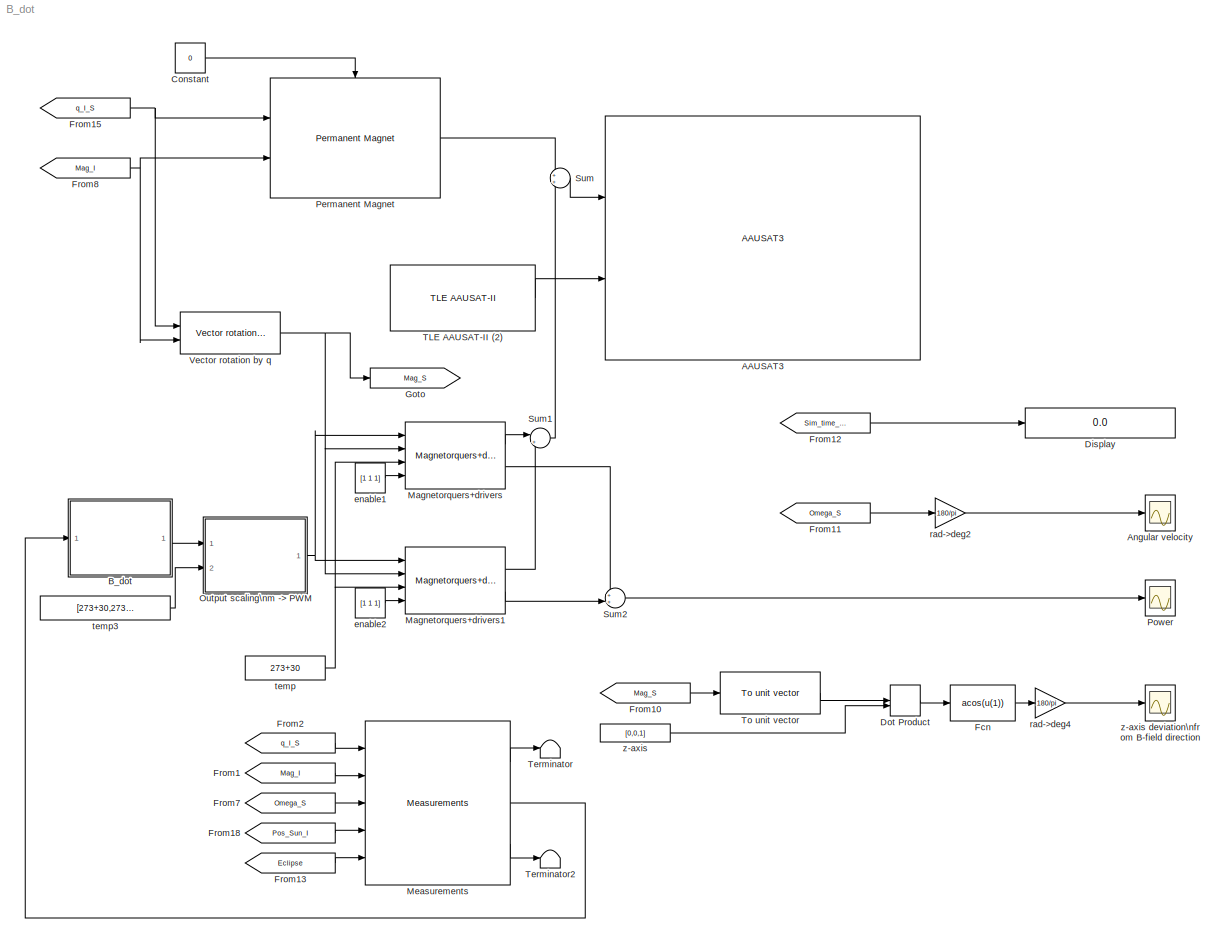
MODEL B_dot
KIND model
BLOCK [Reference] AAUSAT3  REF=aausat3_lib/AAUSAT3  (lib defined in mdl_4157f6465749, slx_d9305f96731e)
  Cd = 2
  Dim = [0.1,0.1,0.11]
  FunctionWithSeparateData = off
  Ports = [2]
  RTWMemSecDataConstants = Inherit from model
  RTWMemSecDataInternal = Inherit from model
  RTWMemSecDataParameters = Inherit from model
  RTWMemSecFuncExecute = Inherit from model
  RTWMemSecFuncInitTerm = Inherit from model
  SID = 1039
  ShowPortLabels = none
  SourceBlock = aausat3_lib/AAUSAT3
  SystemSampleTime = -1
  Ts = 1
  enable_env_disturbance = on
  enable_sensor_emulation = on
  inertia_c = [0.0017464,0.0022092,0.0022388]
  init_jd = 2455153.1954318
  mass_sc = 0.957820
  q_init_I_S = [1 0 0 0]
  q_s_c = [-0.020656,0.71468,-0.007319,0.6991]
  r_com_s = [0.049073,0.048909,0.042976]
  redfac = 1
  refldata = load('lib/AlbedoToolbox-1.0/refl_data/2005/ga050101-051231')
  rho = 5e-14
  sat_temp_start = 293.15
  solar_absorb_coeff = 1.5
  solar_m_flux = 4.5565e-6
  theta_e = 65
  w_init_s = [1,1,1]*10*pi/180
BLOCK [Scope] Angular velocity
  DataFormat = StructureWithTime
  Floating = off
  LimitDataPoints = off
  NumInputPorts = 1
  Ports = [1]
  SID = 933
  SampleInput = on
  SaveName = ScopeData2
  TimeRange = 48000
  YMax = 1
  YMin = -1
  ZoomMode = yonly
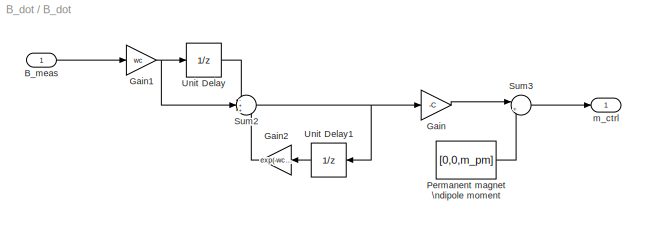
BLOCK [SubSystem] B_dot
  AncestorBlock = aausat3_lib/ACS/B_dot
  FunctionWithSeparateData = off
  MaskCallbackString = |||
  MaskEnableString = on,on,on,on
  MaskHideContents = off
  MaskIconFrame = on
  MaskIconOpaque = on
  MaskIconRotate = none
  MaskIconUnits = autoscale
  MaskPortRotate = default
  MaskPromptString = Gain:|Filter cutoff frequency:|Permanent magnet dipole moment:|Sample time:
  MaskStyleString = edit,edit,edit,edit
  MaskToolTipString = on,on,on,on
  MaskTunableValueString = on,on,on,on
  MaskValueString = 6000|0.7|-0.0030|0.1
  MaskVariables = C=@1;wc=@2;m_pm=@3;Ts=@4;
  MaskVisibilityString = on,on,on,on
  MinAlgLoopOccurrences = off
  Opaque = off
  Ports = [1, 1]
  PropExecContextOutsideSubsystem = off
  RTWSystemCode = Auto
  RequestExecContextInheritance = off
  SID = 1038
BLOCK [Inport] B_dot/B_meas
  IconDisplay = Port number
  OutDataType = sfix(16)
  OutScaling = 2^0
  SID = 4483
BLOCK [Gain] B_dot/Gain
  Gain = -C
  OutDataType = fixdt(1, 16)
  OutDataTypeMode = Inherit via internal rule
  OutDataTypeStr = Inherit: Inherit via internal rule
  OutScaling = 2^0
  ParamDataTypeStr = Inherit: Inherit via internal rule
  ParameterDataType = fixdt(1, 16)
  ParameterDataTypeMode = Inherit via internal rule
  ParameterScaling = 2^0
  SID = 4543
  SaturateOnIntegerOverflow = off
BLOCK [Gain] B_dot/Gain1
  Gain = wc
  OutDataType = fixdt(1, 16)
  OutDataTypeMode = Inherit via internal rule
  OutDataTypeStr = Inherit: Inherit via internal rule
  OutScaling = 2^0
  ParamDataTypeStr = Inherit: Inherit via internal rule
  ParameterDataType = fixdt(1, 16)
  ParameterDataTypeMode = Inherit via internal rule
  ParameterScaling = 2^0
  SID = 4544
  SaturateOnIntegerOverflow = off
BLOCK [Gain] B_dot/Gain2
  Gain = exp(-wc*Ts)
  OutDataType = fixdt(1, 16)
  OutDataTypeMode = Inherit via internal rule
  OutDataTypeStr = Inherit: Inherit via internal rule
  OutScaling = 2^0
  ParamDataTypeStr = Inherit: Inherit via internal rule
  ParameterDataType = fixdt(1, 16)
  ParameterDataTypeMode = Inherit via internal rule
  ParameterScaling = 2^0
  SID = 4545
  SaturateOnIntegerOverflow = off
BLOCK [Constant] B_dot/Permanent magnet \ndipole moment
  OutDataType = fixdt(1, 16)
  OutScaling = 2^0
  SID = 4546
  Value = [0,0,m_pm]
BLOCK [Sum] B_dot/Sum2
  IconShape = round
  InputSameDT = off
  Inputs = -++
  OutDataType = fixdt(1, 16)
  OutDataTypeMode = Inherit via internal rule
  OutDataTypeStr = Inherit: Inherit via internal rule
  OutScaling = 2^0
  Ports = [3, 1]
  SID = 4547
  SaturateOnIntegerOverflow = off
BLOCK [Sum] B_dot/Sum3
  IconShape = round
  InputSameDT = off
  Inputs = |++
  OutDataType = fixdt(1, 16)
  OutDataTypeMode = Inherit via internal rule
  OutDataTypeStr = Inherit: Inherit via internal rule
  OutScaling = 2^0
  Ports = [2, 1]
  SID = 4548
  SaturateOnIntegerOverflow = off
BLOCK [UnitDelay] B_dot/Unit Delay
  SID = 4549
  SampleTime = -1
BLOCK [UnitDelay] B_dot/Unit Delay1
  SID = 4550
  SampleTime = -1
BLOCK [Outport] B_dot/m_ctrl
  IconDisplay = Port number
  OutDataType = sfix(16)
  OutScaling = 2^0
  PortDimensions = 3
  SID = 4542
BLOCK [Constant] Constant
  OutDataType = fixdt(1, 16)
  OutScaling = 2^0
  SID = 116
  Value = 0
BLOCK [Display] Display
  Decimation = 1
  Format = long
  Lockdown = off
  Ports = [1]
  SID = 390
BLOCK [DotProduct] Dot Product
  OutDataType = fixdt(1, 16)
  OutDataTypeStr = Inherit: Inherit via internal rule
  OutScaling = 2^-10
  OutputDataTypeScalingMode = Inherit via internal rule
  SID = 1023
BLOCK [Fcn] Fcn
  Expr = acos(u(1))
  SID = 1022
BLOCK [From] From1
  CloseFcn = tagdialog Close
  GotoTag = Mag_I
  SID = 120
  TagVisibility = global
BLOCK [From] From10
  CloseFcn = tagdialog Close
  GotoTag = Mag_S
  SID = 1025
  TagVisibility = global
BLOCK [From] From11
  CloseFcn = tagdialog Close
  GotoTag = Omega_S
  SID = 931
  TagVisibility = global
BLOCK [From] From12
  CloseFcn = tagdialog Close
  GotoTag = Sim_time_JD
  SID = 389
  TagVisibility = global
BLOCK [From] From13
  CloseFcn = tagdialog Close
  GotoTag = Eclipse
  SID = 399
  TagVisibility = global
BLOCK [From] From15
  CloseFcn = tagdialog Close
  GotoTag = q_I_S
  SID = 115
  TagVisibility = global
BLOCK [From] From18
  CloseFcn = tagdialog Close
  GotoTag = Pos_Sun_I
  SID = 121
  TagVisibility = global
BLOCK [From] From2
  CloseFcn = tagdialog Close
  GotoTag = q_I_S
  SID = 123
  TagVisibility = global
BLOCK [From] From7
  CloseFcn = tagdialog Close
  GotoTag = Omega_S
  SID = 122
  TagVisibility = global
BLOCK [From] From8
  CloseFcn = tagdialog Close
  GotoTag = Mag_I
  SID = 114
  TagVisibility = global
BLOCK [Goto] Goto
  GotoTag = Mag_S
  SID = 983
  TagVisibility = global
BLOCK [Reference] Magnetorquers+drivers  REF=aausat3_lib/Actuator Emulation/Magnetorquers+drivers  (lib defined in mdl_4157f6465749, slx_d9305f96731e)
  A_wire_mt = (pi/4)*(0.13e-3)^2
  FunctionWithSeparateData = off
  Ports = [4, 2]
  RTWMemSecDataConstants = Inherit from model
  RTWMemSecDataInternal = Inherit from model
  RTWMemSecDataParameters = Inherit from model
  RTWMemSecFuncExecute = Inherit from model
  RTWMemSecFuncInitTerm = Inherit from model
  SID = 972
  ShowPortLabels = FromPortIcon
  SourceBlock = aausat3_lib/Actuator Emulation/Magnetorquers+drivers
  SystemSampleTime = -1
  T_0_mt = 293.15
  alpha_0_mt = 3.9e-3
  coil_dim = [0.075,0.075]
  duty_mag = 88
  freq_mag = 10
  n_mt = 250
  sigma_0_mt = 1.7e-8
BLOCK [Reference] Magnetorquers+drivers1  REF=aausat3_lib/Actuator Emulation/Magnetorquers+drivers  (lib defined in mdl_4157f6465749, slx_d9305f96731e)
  A_wire_mt = (pi/4)*(0.13e-3)^2
  FunctionWithSeparateData = off
  Ports = [4, 2]
  RTWMemSecDataConstants = Inherit from model
  RTWMemSecDataInternal = Inherit from model
  RTWMemSecDataParameters = Inherit from model
  RTWMemSecFuncExecute = Inherit from model
  RTWMemSecFuncInitTerm = Inherit from model
  SID = 973
  ShowPortLabels = FromPortIcon
  SourceBlock = aausat3_lib/Actuator Emulation/Magnetorquers+drivers
  SystemSampleTime = -1
  T_0_mt = 293.15
  alpha_0_mt = 3.9e-3
  coil_dim = [0.075,0.075]
  duty_mag = 88
  freq_mag = 10
  n_mt = 250
  sigma_0_mt = 1.7e-8
BLOCK [Reference] Measurements  REF=aausat3_lib/Sensor Emulation/Measurements  (lib defined in mdl_4157f6465749, slx_d9305f96731e)
  FunctionWithSeparateData = off
  Ports = [5, 3]
  RTWMemSecDataConstants = Inherit from model
  RTWMemSecDataInternal = Inherit from model
  RTWMemSecDataParameters = Inherit from model
  RTWMemSecFuncExecute = Inherit from model
  RTWMemSecFuncInitTerm = Inherit from model
  SID = 876
  ShowPortLabels = FromPortIcon
  SourceBlock = aausat3_lib/Sensor Emulation/Measurements
  SystemSampleTime = -1
  bias_gyro = [0 0 0]
  bias_mag = [0 0 0]
  bias_sun = [0 0]
  heading_gyro = 0
  heading_mag = 0
  noise_gyro = 0.2
  noise_mag = 3
  noise_sun = 3.33
  nr_sample_sun = 1
  s_freq_gyro = 1
  s_freq_mag = 10
  s_freq_sun = 1
  tilt_gyro = 0
  tilt_mag = 0
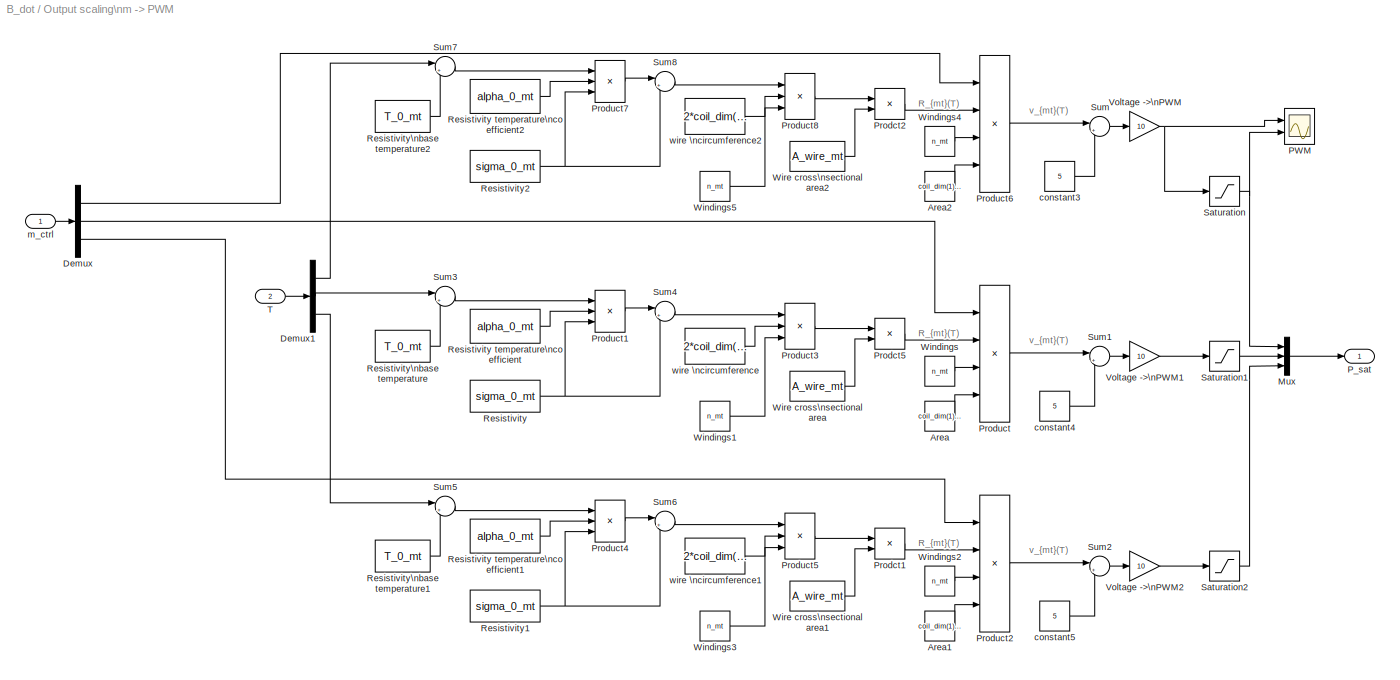
BLOCK [SubSystem] Output scaling\nm -> PWM
  AncestorBlock = aausat3_lib/Actuator Emulation/Output scaling\nm -> PWM
  FunctionWithSeparateData = off
  MaskCallbackString = |||||||
  MaskEnableString = on,on,on,on,on,on,on,on
  MaskHideContents = off
  MaskIconFrame = on
  MaskIconOpaque = on
  MaskIconRotate = none
  MaskIconUnits = autoscale
  MaskPortRotate = default
  MaskPromptString = Coil Dimensions [x,y][m]:|Coil Winding Number [-]:|Wire Cross Sectional Area [m^2]:|Wire Resistivity [Ohm*m]:|Wire Resistivity Temperature Coefficient [(deg C)^-1]:|Wire Resistivity Base Temperature [K]:|PWM max [%]|PWM min [%]
  MaskStyleString = edit,edit,edit,edit,edit,edit,edit,edit
  MaskToolTipString = on,on,on,on,on,on,on,on
  MaskTunableValueString = on,on,on,on,on,on,on,on
  MaskValueString = [0.075,0.075]|250|(pi/4)*(0.13e-3)^2|1.7e-8|3.9e-3|293.15|62.5|37.5
  MaskVariables = coil_dim=@1;n_mt=@2;A_wire_mt=@3;sigma_0_mt=@4;alpha_0_mt=@5;T_0_mt=@6;PWM_max=@7;PWM_min=@8;
  MaskVisibilityString = on,on,on,on,on,on,on,on
  MinAlgLoopOccurrences = off
  Opaque = off
  Ports = [2, 1]
  PropExecContextOutsideSubsystem = off
  RTWSystemCode = Auto
  RequestExecContextInheritance = off
  SID = 961
BLOCK [Constant] Output scaling\nm -> PWM/Area
  OutDataType = sfix(16)
  OutScaling = 2^0
  SID = 4447
  Value = coil_dim(1)*coil_dim(2)
BLOCK [Constant] Output scaling\nm -> PWM/Area1
  OutDataType = sfix(16)
  OutScaling = 2^0
  SID = 4449
  Value = coil_dim(1)*coil_dim(2)
BLOCK [Constant] Output scaling\nm -> PWM/Area2
  OutDataType = sfix(16)
  OutScaling = 2^0
  SID = 4463
  Value = coil_dim(1)*coil_dim(2)
BLOCK [Demux] Output scaling\nm -> PWM/Demux
  DisplayOption = bar
  Outputs = 3
  Ports = [1, 3]
  SID = 4386
BLOCK [Demux] Output scaling\nm -> PWM/Demux1
  DisplayOption = bar
  Outputs = 3
  Ports = [1, 3]
  SID = 4446
BLOCK [Mux] Output scaling\nm -> PWM/Mux
  DisplayOption = bar
  Inputs = 3
  Ports = [3, 1]
  SID = 4388
BLOCK [Scope] Output scaling\nm -> PWM/PWM
  DataFormat = StructureWithTime
  Floating = off
  LimitDataPoints = off
  NumInputPorts = 2
  Ports = [2]
  SID = 4552
  SampleInput = on
  SaveName = ScopeData4
  TimeRange = 5000
  YMax = 67.5~62.5
  YMin = 37.5~37.5
BLOCK [Outport] Output scaling\nm -> PWM/P_sat
  IconDisplay = Port number
  OutDataType = sfix(16)
  OutScaling = 2^0
  PortDimensions = 3
  SID = 4417
BLOCK [Product] Output scaling\nm -> PWM/Prodct1
  InputSameDT = off
  Inputs = */
  OutDataType = sfix(16)
  OutDataTypeMode = Inherit via internal rule
  OutDataTypeStr = Inherit: Inherit via internal rule
  OutScaling = 2^0
  Ports = [2, 1]
  SID = 4450
  SaturateOnIntegerOverflow = off
BLOCK [Product] Output scaling\nm -> PWM/Prodct2
  InputSameDT = off
  Inputs = */
  OutDataType = sfix(16)
  OutDataTypeMode = Inherit via internal rule
  OutDataTypeStr = Inherit: Inherit via internal rule
  OutScaling = 2^0
  Ports = [2, 1]
  SID = 4464
  SaturateOnIntegerOverflow = off
BLOCK [Product] Output scaling\nm -> PWM/Prodct5
  InputSameDT = off
  Inputs = */
  OutDataType = sfix(16)
  OutDataTypeMode = Inherit via internal rule
  OutDataTypeStr = Inherit: Inherit via internal rule
  OutScaling = 2^0
  Ports = [2, 1]
  SID = 4428
  SaturateOnIntegerOverflow = off
BLOCK [Product] Output scaling\nm -> PWM/Product
  InputSameDT = off
  Inputs = **//
  OutDataType = sfix(16)
  OutDataTypeMode = Inherit via internal rule
  OutDataTypeStr = Inherit: Inherit via internal rule
  OutScaling = 2^0
  Ports = [4, 1]
  SID = 4429
  SaturateOnIntegerOverflow = off
BLOCK [Product] Output scaling\nm -> PWM/Product1
  InputSameDT = off
  Inputs = 3
  OutDataType = sfix(16)
  OutDataTypeMode = Inherit via internal rule
  OutDataTypeStr = Inherit: Inherit via internal rule
  OutScaling = 2^0
  Ports = [3, 1]
  SID = 4430
  SaturateOnIntegerOverflow = off
BLOCK [Product] Output scaling\nm -> PWM/Product2
  InputSameDT = off
  Inputs = **//
  OutDataType = sfix(16)
  OutDataTypeMode = Inherit via internal rule
  OutDataTypeStr = Inherit: Inherit via internal rule
  OutScaling = 2^0
  Ports = [4, 1]
  SID = 4451
  SaturateOnIntegerOverflow = off
BLOCK [Product] Output scaling\nm -> PWM/Product3
  InputSameDT = off
  Inputs = 3
  OutDataType = sfix(16)
  OutDataTypeMode = Inherit via internal rule
  OutDataTypeStr = Inherit: Inherit via internal rule
  OutScaling = 2^0
  Ports = [3, 1]
  SID = 4432
  SaturateOnIntegerOverflow = off
BLOCK [Product] Output scaling\nm -> PWM/Product4
  InputSameDT = off
  Inputs = 3
  OutDataType = sfix(16)
  OutDataTypeMode = Inherit via internal rule
  OutDataTypeStr = Inherit: Inherit via internal rule
  OutScaling = 2^0
  Ports = [3, 1]
  SID = 4452
  SaturateOnIntegerOverflow = off
BLOCK [Product] Output scaling\nm -> PWM/Product5
  InputSameDT = off
  Inputs = 3
  OutDataType = sfix(16)
  OutDataTypeMode = Inherit via internal rule
  OutDataTypeStr = Inherit: Inherit via internal rule
  OutScaling = 2^0
  Ports = [3, 1]
  SID = 4453
  SaturateOnIntegerOverflow = off
BLOCK [Product] Output scaling\nm -> PWM/Product6
  InputSameDT = off
  Inputs = **//
  OutDataType = sfix(16)
  OutDataTypeMode = Inherit via internal rule
  OutDataTypeStr = Inherit: Inherit via internal rule
  OutScaling = 2^0
  Ports = [4, 1]
  SID = 4465
  SaturateOnIntegerOverflow = off
BLOCK [Product] Output scaling\nm -> PWM/Product7
  InputSameDT = off
  Inputs = 3
  OutDataType = sfix(16)
  OutDataTypeMode = Inherit via internal rule
  OutDataTypeStr = Inherit: Inherit via internal rule
  OutScaling = 2^0
  Ports = [3, 1]
  SID = 4466
  SaturateOnIntegerOverflow = off
BLOCK [Product] Output scaling\nm -> PWM/Product8
  InputSameDT = off
  Inputs = 3
  OutDataType = sfix(16)
  OutDataTypeMode = Inherit via internal rule
  OutDataTypeStr = Inherit: Inherit via internal rule
  OutScaling = 2^0
  Ports = [3, 1]
  SID = 4467
  SaturateOnIntegerOverflow = off
BLOCK [Constant] Output scaling\nm -> PWM/Resistivity
  OutDataType = sfix(16)
  OutScaling = 2^0
  SID = 4434
  Value = sigma_0_mt
BLOCK [Constant] Output scaling\nm -> PWM/Resistivity temperature\ncoefficient
  OutDataType = sfix(16)
  OutScaling = 2^0
  SID = 4436
  Value = alpha_0_mt
BLOCK [Constant] Output scaling\nm -> PWM/Resistivity temperature\ncoefficient1
  OutDataType = sfix(16)
  OutScaling = 2^0
  SID = 4456
  Value = alpha_0_mt
BLOCK [Constant] Output scaling\nm -> PWM/Resistivity temperature\ncoefficient2
  OutDataType = sfix(16)
  OutScaling = 2^0
  SID = 4470
  Value = alpha_0_mt
BLOCK [Constant] Output scaling\nm -> PWM/Resistivity1
  OutDataType = sfix(16)
  OutScaling = 2^0
  SID = 4454
  Value = sigma_0_mt
BLOCK [Constant] Output scaling\nm -> PWM/Resistivity2
  OutDataType = sfix(16)
  OutScaling = 2^0
  SID = 4468
  Value = sigma_0_mt
BLOCK [Constant] Output scaling\nm -> PWM/Resistivity\nbase temperature
  OutDataType = sfix(16)
  OutScaling = 2^0
  SID = 4435
  Value = T_0_mt
BLOCK [Constant] Output scaling\nm -> PWM/Resistivity\nbase temperature1
  OutDataType = sfix(16)
  OutScaling = 2^0
  SID = 4455
  Value = T_0_mt
BLOCK [Constant] Output scaling\nm -> PWM/Resistivity\nbase temperature2
  OutDataType = sfix(16)
  OutScaling = 2^0
  SID = 4469
  Value = T_0_mt
BLOCK [Saturate] Output scaling\nm -> PWM/Saturation
  LowerLimit = PWM_min
  SID = 4418
  UpperLimit = PWM_max
BLOCK [Saturate] Output scaling\nm -> PWM/Saturation1
  LowerLimit = PWM_min
  SID = 4419
  UpperLimit = PWM_max
BLOCK [Saturate] Output scaling\nm -> PWM/Saturation2
  LowerLimit = PWM_min
  SID = 4420
  UpperLimit = PWM_max
BLOCK [Sum] Output scaling\nm -> PWM/Sum
  IconShape = round
  InputSameDT = off
  Inputs = |++
  OutDataType = fixdt(1, 16)
  OutDataTypeMode = Inherit via internal rule
  OutDataTypeStr = Inherit: Inherit via internal rule
  OutScaling = 2^0
  Ports = [2, 1]
  SID = 4398
  SaturateOnIntegerOverflow = off
BLOCK [Sum] Output scaling\nm -> PWM/Sum1
  IconShape = round
  InputSameDT = off
  Inputs = |++
  OutDataType = fixdt(1, 16)
  OutDataTypeMode = Inherit via internal rule
  OutDataTypeStr = Inherit: Inherit via internal rule
  OutScaling = 2^0
  Ports = [2, 1]
  SID = 4399
  SaturateOnIntegerOverflow = off
BLOCK [Sum] Output scaling\nm -> PWM/Sum2
  IconShape = round
  InputSameDT = off
  Inputs = |++
  OutDataType = fixdt(1, 16)
  OutDataTypeMode = Inherit via internal rule
  OutDataTypeStr = Inherit: Inherit via internal rule
  OutScaling = 2^0
  Ports = [2, 1]
  SID = 4400
  SaturateOnIntegerOverflow = off
BLOCK [Sum] Output scaling\nm -> PWM/Sum3
  IconShape = round
  InputSameDT = off
  Inputs = |+-
  OutDataType = sfix(16)
  OutDataTypeMode = Inherit via internal rule
  OutDataTypeStr = Inherit: Inherit via internal rule
  OutScaling = 2^0
  Ports = [2, 1]
  SID = 4437
  SaturateOnIntegerOverflow = off
BLOCK [Sum] Output scaling\nm -> PWM/Sum4
  IconShape = round
  InputSameDT = off
  Inputs = |++
  OutDataType = sfix(16)
  OutDataTypeMode = Inherit via internal rule
  OutDataTypeStr = Inherit: Inherit via internal rule
  OutScaling = 2^0
  Ports = [2, 1]
  SID = 4438
  SaturateOnIntegerOverflow = off
BLOCK [Sum] Output scaling\nm -> PWM/Sum5
  IconShape = round
  InputSameDT = off
  Inputs = |+-
  OutDataType = sfix(16)
  OutDataTypeMode = Inherit via internal rule
  OutDataTypeStr = Inherit: Inherit via internal rule
  OutScaling = 2^0
  Ports = [2, 1]
  SID = 4457
  SaturateOnIntegerOverflow = off
BLOCK [Sum] Output scaling\nm -> PWM/Sum6
  IconShape = round
  InputSameDT = off
  Inputs = |++
  OutDataType = sfix(16)
  OutDataTypeMode = Inherit via internal rule
  OutDataTypeStr = Inherit: Inherit via internal rule
  OutScaling = 2^0
  Ports = [2, 1]
  SID = 4458
  SaturateOnIntegerOverflow = off
BLOCK [Sum] Output scaling\nm -> PWM/Sum7
  IconShape = round
  InputSameDT = off
  Inputs = |+-
  OutDataType = sfix(16)
  OutDataTypeMode = Inherit via internal rule
  OutDataTypeStr = Inherit: Inherit via internal rule
  OutScaling = 2^0
  Ports = [2, 1]
  SID = 4471
  SaturateOnIntegerOverflow = off
BLOCK [Sum] Output scaling\nm -> PWM/Sum8
  IconShape = round
  InputSameDT = off
  Inputs = |++
  OutDataType = sfix(16)
  OutDataTypeMode = Inherit via internal rule
  OutDataTypeStr = Inherit: Inherit via internal rule
  OutScaling = 2^0
  Ports = [2, 1]
  SID = 4472
  SaturateOnIntegerOverflow = off
BLOCK [Inport] Output scaling\nm -> PWM/T
  IconDisplay = Port number
  OutDataType = sfix(16)
  OutScaling = 2^0
  Port = 2
  SID = 4424
BLOCK [Gain] Output scaling\nm -> PWM/Voltage ->\nPWM
  Gain = 10
  OutDataType = fixdt(1, 16)
  OutDataTypeMode = Inherit via internal rule
  OutDataTypeStr = Inherit: Inherit via internal rule
  OutScaling = 2^0
  ParamDataTypeStr = Inherit: Inherit via internal rule
  ParameterDataType = fixdt(1, 16)
  ParameterDataTypeMode = Inherit via internal rule
  ParameterScaling = 2^0
  SID = 4477
  SaturateOnIntegerOverflow = off
BLOCK [Gain] Output scaling\nm -> PWM/Voltage ->\nPWM1
  Gain = 10
  OutDataType = fixdt(1, 16)
  OutDataTypeMode = Inherit via internal rule
  OutDataTypeStr = Inherit: Inherit via internal rule
  OutScaling = 2^0
  ParamDataTypeStr = Inherit: Inherit via internal rule
  ParameterDataType = fixdt(1, 16)
  ParameterDataTypeMode = Inherit via internal rule
  ParameterScaling = 2^0
  SID = 4480
  SaturateOnIntegerOverflow = off
BLOCK [Gain] Output scaling\nm -> PWM/Voltage ->\nPWM2
  Gain = 10
  OutDataType = fixdt(1, 16)
  OutDataTypeMode = Inherit via internal rule
  OutDataTypeStr = Inherit: Inherit via internal rule
  OutScaling = 2^0
  ParamDataTypeStr = Inherit: Inherit via internal rule
  ParameterDataType = fixdt(1, 16)
  ParameterDataTypeMode = Inherit via internal rule
  ParameterScaling = 2^0
  SID = 4481
  SaturateOnIntegerOverflow = off
BLOCK [Constant] Output scaling\nm -> PWM/Windings
  OutDataType = sfix(16)
  OutScaling = 2^0
  SID = 4448
  Value = n_mt
BLOCK [Constant] Output scaling\nm -> PWM/Windings1
  OutDataType = sfix(16)
  OutScaling = 2^0
  SID = 4440
  Value = n_mt
BLOCK [Constant] Output scaling\nm -> PWM/Windings2
  OutDataType = sfix(16)
  OutScaling = 2^0
  SID = 4459
  Value = n_mt
BLOCK [Constant] Output scaling\nm -> PWM/Windings3
  OutDataType = sfix(16)
  OutScaling = 2^0
  SID = 4460
  Value = n_mt
BLOCK [Constant] Output scaling\nm -> PWM/Windings4
  OutDataType = sfix(16)
  OutScaling = 2^0
  SID = 4473
  Value = n_mt
BLOCK [Constant] Output scaling\nm -> PWM/Windings5
  OutDataType = sfix(16)
  OutScaling = 2^0
  SID = 4474
  Value = n_mt
BLOCK [Constant] Output scaling\nm -> PWM/Wire cross\nsectional area
  OutDataType = sfix(16)
  OutScaling = 2^0
  SID = 4441
  Value = A_wire_mt
BLOCK [Constant] Output scaling\nm -> PWM/Wire cross\nsectional area1
  OutDataType = sfix(16)
  OutScaling = 2^0
  SID = 4461
  Value = A_wire_mt
BLOCK [Constant] Output scaling\nm -> PWM/Wire cross\nsectional area2
  OutDataType = sfix(16)
  OutScaling = 2^0
  SID = 4475
  Value = A_wire_mt
BLOCK [Constant] Output scaling\nm -> PWM/constant3
  OutDataType = sfix(16)
  OutScaling = 2^0
  SID = 4413
  Value = 5
BLOCK [Constant] Output scaling\nm -> PWM/constant4
  OutDataType = sfix(16)
  OutScaling = 2^0
  SID = 4414
  Value = 5
BLOCK [Constant] Output scaling\nm -> PWM/constant5
  OutDataType = sfix(16)
  OutScaling = 2^0
  SID = 4415
  Value = 5
BLOCK [Inport] Output scaling\nm -> PWM/m_ctrl
  IconDisplay = Port number
  OutDataType = sfix(16)
  OutScaling = 2^0
  SID = 4381
BLOCK [Constant] Output scaling\nm -> PWM/wire \ncircumference
  OutDataType = sfix(16)
  OutScaling = 2^0
  SID = 4442
  Value = 2*coil_dim(1)+2*coil_dim(2)
BLOCK [Constant] Output scaling\nm -> PWM/wire \ncircumference1
  OutDataType = sfix(16)
  OutScaling = 2^0
  SID = 4462
  Value = 2*coil_dim(1)+2*coil_dim(2)
BLOCK [Constant] Output scaling\nm -> PWM/wire \ncircumference2
  OutDataType = sfix(16)
  OutScaling = 2^0
  SID = 4476
  Value = 2*coil_dim(1)+2*coil_dim(2)
BLOCK [Reference] Permanent Magnet  REF=aausat3_lib/Actuator Emulation/Permanent Magnet  (lib defined in mdl_4157f6465749, slx_d9305f96731e)
  FunctionWithSeparateData = off
  Ports = [2, 1, 1]
  RTWMemSecDataConstants = Inherit from model
  RTWMemSecDataInternal = Inherit from model
  RTWMemSecDataParameters = Inherit from model
  RTWMemSecFuncExecute = Inherit from model
  RTWMemSecFuncInitTerm = Inherit from model
  SID = 109
  ShowPortLabels = FromPortIcon
  SourceBlock = aausat3_lib/Actuator Emulation/Permanent Magnet
  SystemSampleTime = -1
  mag_moment = -0.0030
BLOCK [Scope] Power
  DataFormat = StructureWithTime
  Floating = off
  LimitDataPoints = off
  NumInputPorts = 1
  Ports = [1]
  SID = 969
  SampleInput = on
  SaveName = ScopeData3
  TimeRange = 48000
  YMax = 0.035
  YMin = 0
  ZoomMode = xonly
BLOCK [Sum] Sum
  IconShape = round
  InputSameDT = off
  OutDataType = fixdt(1, 16)
  OutDataTypeMode = Inherit via internal rule
  OutDataTypeStr = Inherit: Inherit via internal rule
  OutScaling = 2^0
  Ports = [2, 1]
  SID = 881
  SaturateOnIntegerOverflow = off
BLOCK [Sum] Sum1
  IconShape = round
  InputSameDT = off
  Inputs = |++
  OutDataType = fixdt(1, 16)
  OutDataTypeMode = Inherit via internal rule
  OutDataTypeStr = Inherit: Inherit via internal rule
  OutScaling = 2^0
  Ports = [2, 1]
  SID = 936
  SaturateOnIntegerOverflow = off
BLOCK [Sum] Sum2
  IconShape = round
  InputSameDT = off
  Inputs = ++|
  OutDataType = fixdt(1, 16)
  OutDataTypeMode = Inherit via internal rule
  OutDataTypeStr = Inherit: Inherit via internal rule
  OutScaling = 2^0
  Ports = [2, 1]
  SID = 970
  SaturateOnIntegerOverflow = off
BLOCK [Reference] TLE AAUSAT-II (2)  REF=aausat3_lib/Orbit and Ephemeris/TLE AAUSAT-II  (lib defined in mdl_4157f6465749, slx_d9305f96731e)
  FunctionWithSeparateData = off
  JulianDay = 09321.69542252
  Ports = [0, 1]
  RTWMemSecDataConstants = Inherit from model
  RTWMemSecDataInternal = Inherit from model
  RTWMemSecDataParameters = Inherit from model
  RTWMemSecFuncExecute = Inherit from model
  RTWMemSecFuncInitTerm = Inherit from model
  SID = 110
  ShowPortLabels = FromPortIcon
  SourceBlock = aausat3_lib/Orbit and Ephemeris/TLE AAUSAT-II
  SystemSampleTime = -1
  bstar = .76898e-4
  eo = 0.0014245
  omegao = 254.1774
  satname = 'AAUSAT-II'
  ts = 1
  xincl = 97.9251
  xmo = 105.7862
  xndd6o = 0.0
  xndt2o = 0.00000555
  xno = 14.81823818
  xnodeo = 24.1597
BLOCK [Terminator] Terminator
  SID = 887
BLOCK [Terminator] Terminator2
  SID = 889
BLOCK [Reference] To unit vector  REF=aausat3_lib/Math Utilities/Vector operations/To unit vector  (lib defined in mdl_4157f6465749, slx_d9305f96731e)
  FunctionWithSeparateData = off
  Ports = [1, 1]
  RTWMemSecDataConstants = Inherit from model
  RTWMemSecDataInternal = Inherit from model
  RTWMemSecDataParameters = Inherit from model
  RTWMemSecFuncExecute = Inherit from model
  RTWMemSecFuncInitTerm = Inherit from model
  SID = 1028
  ShowPortLabels = FromPortIcon
  SourceBlock = aausat3_lib/Math Utilities/Vector operations/To unit vector
  SourceType = SubSystem
  SystemSampleTime = -1
BLOCK [Reference] Vector rotation by q  REF=aausat3_lib/Actuator Emulation/Permanent Magnet/Vector rotation by q  (lib defined in mdl_4157f6465749, slx_d9305f96731e)
  FunctionWithSeparateData = off
  Ports = [2, 1]
  RTWMemSecDataConstants = Inherit from model
  RTWMemSecDataInternal = Inherit from model
  RTWMemSecDataParameters = Inherit from model
  RTWMemSecFuncExecute = Inherit from model
  RTWMemSecFuncInitTerm = Inherit from model
  SID = 882
  ShowPortLabels = FromPortIcon
  SourceBlock = aausat3_lib/Actuator Emulation/Permanent Magnet/Vector rotation by q
  SourceType = SubSystem
  SystemSampleTime = -1
BLOCK [Constant] enable1
  OutDataType = fixdt(1, 16)
  OutScaling = 2^0
  SID = 925
  Value = [1 1 1]
BLOCK [Constant] enable2
  OutDataType = fixdt(1, 16)
  OutScaling = 2^0
  SID = 937
  Value = [1 1 1]
  VectorParams1D = off
BLOCK [Gain] rad->deg2
  Gain = 180/pi
  OutDataType = fixdt(1, 16)
  OutDataTypeMode = Inherit via internal rule
  OutDataTypeStr = Inherit: Inherit via internal rule
  OutScaling = 2^0
  ParamDataTypeStr = Inherit: Inherit via internal rule
  ParameterDataType = fixdt(1, 16)
  ParameterDataTypeMode = Inherit via internal rule
  ParameterScaling = 2^0
  SID = 932
  SaturateOnIntegerOverflow = off
BLOCK [Gain] rad->deg4
  Gain = 180/pi
  OutDataType = fixdt(1, 16)
  OutDataTypeMode = Inherit via internal rule
  OutDataTypeStr = Inherit: Inherit via internal rule
  OutScaling = 2^0
  ParamDataTypeStr = Inherit: Inherit via internal rule
  ParameterDataType = fixdt(1, 16)
  ParameterDataTypeMode = Inherit via internal rule
  ParameterScaling = 2^0
  SID = 1027
  SaturateOnIntegerOverflow = off
BLOCK [Constant] temp
  OutDataType = fixdt(1, 16)
  OutScaling = 2^0
  SID = 927
  Value = 273+30
BLOCK [Constant] temp3
  OutDataType = fixdt(1, 16)
  OutScaling = 2^0
  SID = 968
  Value = [273+30,273+30,273+30]
BLOCK [Constant] z-axis
  OutDataType = fixdt(1, 16)
  OutScaling = 2^0
  SID = 1020
  Value = [0,0,1]
BLOCK [Scope] z-axis deviation\nfrom B-field direction
  DataFormat = StructureWithTime
  Floating = off
  LimitDataPoints = off
  NumInputPorts = 1
  Ports = [1]
  SID = 1026
  SampleInput = on
  SampleTime = 1
  SaveName = ScopeData9
  TimeRange = 48000
  YMax = 180
  YMin = 0
ANNOTATION Output scaling\nm -> PWM: R_{mt}(T)
ANNOTATION Output scaling\nm -> PWM: v_{mt}(T)
LINE B_dot/B_meas:1 -> B_dot/Gain1:1
NET B_dot/Gain1:1 -> B_dot/Sum2:2, B_dot/Unit Delay:1
LINE B_dot/Gain2:1 -> B_dot/Sum2:3
LINE B_dot/Gain:1 -> B_dot/Sum3:1
LINE B_dot/Permanent magnet \ndipole moment:1 -> B_dot/Sum3:2
NET B_dot/Sum2:1 -> B_dot/Gain:1, B_dot/Unit Delay1:1
LINE B_dot/Sum3:1 -> B_dot/m_ctrl:1
LINE B_dot/Unit Delay1:1 -> B_dot/Gain2:1
LINE B_dot/Unit Delay:1 -> B_dot/Sum2:1
LINE B_dot:1 -> Output scaling\nm -> PWM:1
LINE Constant:1 -> Permanent Magnet:enable
LINE Dot Product:1 -> Fcn:1
LINE Fcn:1 -> rad->deg4:1
LINE From10:1 -> To unit vector:1
LINE From11:1 -> rad->deg2:1
LINE From12:1 -> Display:1
LINE From13:1 -> Measurements:5
NET From15:1 -> Permanent Magnet:1, Vector rotation by q:1
LINE From18:1 -> Measurements:4
LINE From1:1 -> Measurements:2
LINE From2:1 -> Measurements:1
LINE From7:1 -> Measurements:3
NET From8:1 -> Permanent Magnet:2, Vector rotation by q:2
LINE Magnetorquers+drivers1:1 -> Sum1:2
LINE Magnetorquers+drivers1:2 -> Sum2:2
LINE Magnetorquers+drivers:1 -> Sum1:1
LINE Magnetorquers+drivers:2 -> Sum2:1
LINE Measurements:1 -> Terminator:1
LINE Measurements:2 -> B_dot:1
LINE Measurements:3 -> Terminator2:1
LINE Output scaling\nm -> PWM/Area1:1 -> Output scaling\nm -> PWM/Product2:4
LINE Output scaling\nm -> PWM/Area2:1 -> Output scaling\nm -> PWM/Product6:4
LINE Output scaling\nm -> PWM/Area:1 -> Output scaling\nm -> PWM/Product:4
LINE Output scaling\nm -> PWM/Demux1:1 -> Output scaling\nm -> PWM/Sum7:1
LINE Output scaling\nm -> PWM/Demux1:2 -> Output scaling\nm -> PWM/Sum3:1
LINE Output scaling\nm -> PWM/Demux1:3 -> Output scaling\nm -> PWM/Sum5:1
LINE Output scaling\nm -> PWM/Demux:1 -> Output scaling\nm -> PWM/Product6:1
LINE Output scaling\nm -> PWM/Demux:2 -> Output scaling\nm -> PWM/Product:1
LINE Output scaling\nm -> PWM/Demux:3 -> Output scaling\nm -> PWM/Product2:1
LINE Output scaling\nm -> PWM/Mux:1 -> Output scaling\nm -> PWM/P_sat:1
LINE Output scaling\nm -> PWM/Prodct1:1 -> Output scaling\nm -> PWM/Product2:2
LINE Output scaling\nm -> PWM/Prodct2:1 -> Output scaling\nm -> PWM/Product6:2
LINE Output scaling\nm -> PWM/Prodct5:1 -> Output scaling\nm -> PWM/Product:2
LINE Output scaling\nm -> PWM/Product1:1 -> Output scaling\nm -> PWM/Sum4:1
LINE Output scaling\nm -> PWM/Product2:1 -> Output scaling\nm -> PWM/Sum2:1
LINE Output scaling\nm -> PWM/Product3:1 -> Output scaling\nm -> PWM/Prodct5:1
LINE Output scaling\nm -> PWM/Product4:1 -> Output scaling\nm -> PWM/Sum6:1
LINE Output scaling\nm -> PWM/Product5:1 -> Output scaling\nm -> PWM/Prodct1:1
LINE Output scaling\nm -> PWM/Product6:1 -> Output scaling\nm -> PWM/Sum:1
LINE Output scaling\nm -> PWM/Product7:1 -> Output scaling\nm -> PWM/Sum8:1
LINE Output scaling\nm -> PWM/Product8:1 -> Output scaling\nm -> PWM/Prodct2:1
LINE Output scaling\nm -> PWM/Product:1 -> Output scaling\nm -> PWM/Sum1:1
LINE Output scaling\nm -> PWM/Resistivity temperature\ncoefficient1:1 -> Output scaling\nm -> PWM/Product4:2
LINE Output scaling\nm -> PWM/Resistivity temperature\ncoefficient2:1 -> Output scaling\nm -> PWM/Product7:2
LINE Output scaling\nm -> PWM/Resistivity temperature\ncoefficient:1 -> Output scaling\nm -> PWM/Product1:2
NET Output scaling\nm -> PWM/Resistivity1:1 -> Output scaling\nm -> PWM/Product4:3, Output scaling\nm -> PWM/Sum6:2
NET Output scaling\nm -> PWM/Resistivity2:1 -> Output scaling\nm -> PWM/Product7:3, Output scaling\nm -> PWM/Sum8:2
NET Output scaling\nm -> PWM/Resistivity:1 -> Output scaling\nm -> PWM/Product1:3, Output scaling\nm -> PWM/Sum4:2
LINE Output scaling\nm -> PWM/Resistivity\nbase temperature1:1 -> Output scaling\nm -> PWM/Sum5:2
LINE Output scaling\nm -> PWM/Resistivity\nbase temperature2:1 -> Output scaling\nm -> PWM/Sum7:2
LINE Output scaling\nm -> PWM/Resistivity\nbase temperature:1 -> Output scaling\nm -> PWM/Sum3:2
LINE Output scaling\nm -> PWM/Saturation1:1 -> Output scaling\nm -> PWM/Mux:2
LINE Output scaling\nm -> PWM/Saturation2:1 -> Output scaling\nm -> PWM/Mux:3
NET Output scaling\nm -> PWM/Saturation:1 -> Output scaling\nm -> PWM/Mux:1, Output scaling\nm -> PWM/PWM:2
LINE Output scaling\nm -> PWM/Sum1:1 -> Output scaling\nm -> PWM/Voltage ->\nPWM1:1
LINE Output scaling\nm -> PWM/Sum2:1 -> Output scaling\nm -> PWM/Voltage ->\nPWM2:1
LINE Output scaling\nm -> PWM/Sum3:1 -> Output scaling\nm -> PWM/Product1:1
LINE Output scaling\nm -> PWM/Sum4:1 -> Output scaling\nm -> PWM/Product3:1
LINE Output scaling\nm -> PWM/Sum5:1 -> Output scaling\nm -> PWM/Product4:1
LINE Output scaling\nm -> PWM/Sum6:1 -> Output scaling\nm -> PWM/Product5:1
LINE Output scaling\nm -> PWM/Sum7:1 -> Output scaling\nm -> PWM/Product7:1
LINE Output scaling\nm -> PWM/Sum8:1 -> Output scaling\nm -> PWM/Product8:1
LINE Output scaling\nm -> PWM/Sum:1 -> Output scaling\nm -> PWM/Voltage ->\nPWM:1
LINE Output scaling\nm -> PWM/T:1 -> Output scaling\nm -> PWM/Demux1:1
LINE Output scaling\nm -> PWM/Voltage ->\nPWM1:1 -> Output scaling\nm -> PWM/Saturation1:1
LINE Output scaling\nm -> PWM/Voltage ->\nPWM2:1 -> Output scaling\nm -> PWM/Saturation2:1
NET Output scaling\nm -> PWM/Voltage ->\nPWM:1 -> Output scaling\nm -> PWM/PWM:1, Output scaling\nm -> PWM/Saturation:1
LINE Output scaling\nm -> PWM/Windings1:1 -> Output scaling\nm -> PWM/Product3:3
LINE Output scaling\nm -> PWM/Windings2:1 -> Output scaling\nm -> PWM/Product2:3
LINE Output scaling\nm -> PWM/Windings3:1 -> Output scaling\nm -> PWM/Product5:3
LINE Output scaling\nm -> PWM/Windings4:1 -> Output scaling\nm -> PWM/Product6:3
LINE Output scaling\nm -> PWM/Windings5:1 -> Output scaling\nm -> PWM/Product8:3
LINE Output scaling\nm -> PWM/Windings:1 -> Output scaling\nm -> PWM/Product:3
LINE Output scaling\nm -> PWM/Wire cross\nsectional area1:1 -> Output scaling\nm -> PWM/Prodct1:2
LINE Output scaling\nm -> PWM/Wire cross\nsectional area2:1 -> Output scaling\nm -> PWM/Prodct2:2
LINE Output scaling\nm -> PWM/Wire cross\nsectional area:1 -> Output scaling\nm -> PWM/Prodct5:2
LINE Output scaling\nm -> PWM/constant3:1 -> Output scaling\nm -> PWM/Sum:2
LINE Output scaling\nm -> PWM/constant4:1 -> Output scaling\nm -> PWM/Sum1:2
LINE Output scaling\nm -> PWM/constant5:1 -> Output scaling\nm -> PWM/Sum2:2
LINE Output scaling\nm -> PWM/m_ctrl:1 -> Output scaling\nm -> PWM/Demux:1
LINE Output scaling\nm -> PWM/wire \ncircumference1:1 -> Output scaling\nm -> PWM/Product5:2
LINE Output scaling\nm -> PWM/wire \ncircumference2:1 -> Output scaling\nm -> PWM/Product8:2
LINE Output scaling\nm -> PWM/wire \ncircumference:1 -> Output scaling\nm -> PWM/Product3:2
NET Output scaling\nm -> PWM:1 -> Magnetorquers+drivers1:1, Magnetorquers+drivers:1
LINE Permanent Magnet:1 -> Sum:1
LINE Sum1:1 -> Sum:2
LINE Sum2:1 -> Power:1
LINE Sum:1 -> AAUSAT3:1
LINE TLE AAUSAT-II (2):1 -> AAUSAT3:2
LINE To unit vector:1 -> Dot Product:1
NET Vector rotation by q:1 -> Goto:1, Magnetorquers+drivers1:2, Magnetorquers+drivers:2
LINE enable1:1 -> Magnetorquers+drivers:4
LINE enable2:1 -> Magnetorquers+drivers1:4
LINE rad->deg2:1 -> Angular velocity:1
LINE rad->deg4:1 -> z-axis deviation\nfrom B-field direction:1
LINE temp3:1 -> Output scaling\nm -> PWM:2
NET temp:1 -> Magnetorquers+drivers1:3, Magnetorquers+drivers:3
LINE z-axis:1 -> Dot Product:2
note: NET lines group one-source signal fan-out (src -> all destinations, sorted); 1:1 wires keep LINE
